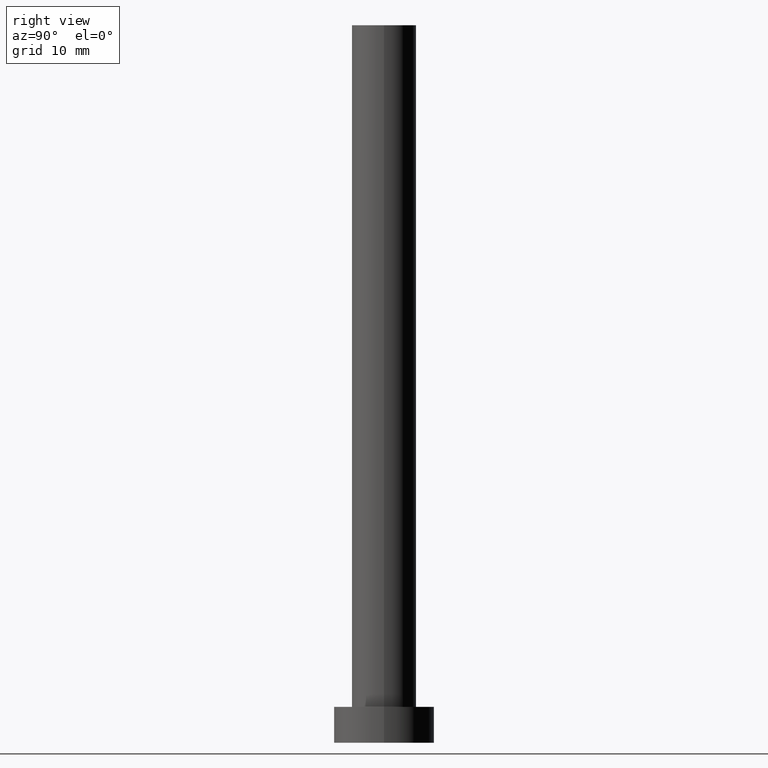
[diagram: clean part render]
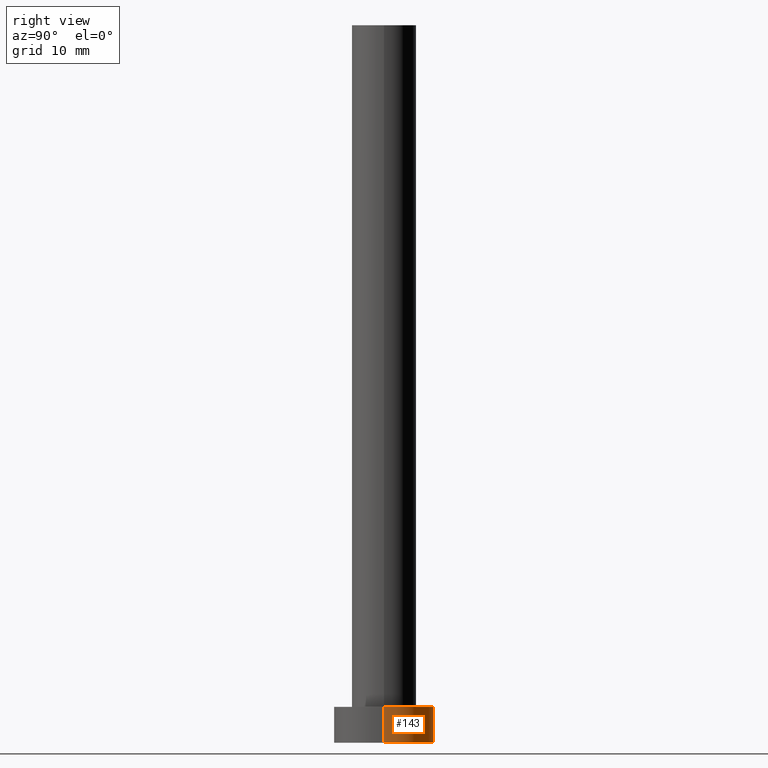
[diagram: same view with one face highlighted and labeled with its STEP entity id]
A machine part, right view. The second image highlights one B-rep face of the part: STEP entity #143.
In plain terms, the highlighted cylindrical surface (partial cylindrical patch) has radius 7 mm, axis along (-0, -0, -1).
Its self-contained STEP definition (entity closure, byte-faithful):
#3 = CARTESIAN_POINT ( 'NONE',  ( 7.000000000000000000, 8.572527594031473190E-16, 5.000000000000000000 ) ) ;
#5 = VECTOR ( 'NONE', #178, 1000.000000000000000 ) ;
#6 = LINE ( 'NONE', #46, #52 ) ;
#11 = VERTEX_POINT ( 'NONE', #22 ) ;
#22 = CARTESIAN_POINT ( 'NONE',  ( 7.000000000000000000, 8.572527594031473190E-16, 0.000000000000000000 ) ) ;
#32 = CARTESIAN_POINT ( 'NONE',  ( -7.000000000000000000, 0.000000000000000000, 5.000000000000000000 ) ) ;
#38 = DIRECTION ( 'NONE',  ( 1.000000000000000000, 0.000000000000000000, 0.000000000000000000 ) ) ;
#41 = ORIENTED_EDGE ( 'NONE', *, *, #43, .F. ) ;
#43 = EDGE_CURVE ( 'NONE', #238, #115, #231, .T. ) ;
#46 = CARTESIAN_POINT ( 'NONE',  ( 7.000000000000000000, 8.572527594031473190E-16, 5.000000000000000000 ) ) ;
#52 = VECTOR ( 'NONE', #89, 1000.000000000000000 ) ;
#60 = EDGE_CURVE ( 'NONE', #11, #115, #212, .T. ) ;
#68 = DIRECTION ( 'NONE',  ( -0.000000000000000000, -0.000000000000000000, -1.000000000000000000 ) ) ;
#88 = DIRECTION ( 'NONE',  ( -1.000000000000000000, 0.000000000000000000, 0.000000000000000000 ) ) ;
#89 = DIRECTION ( 'NONE',  ( -0.000000000000000000, -0.000000000000000000, -1.000000000000000000 ) ) ;
#92 = CYLINDRICAL_SURFACE ( 'NONE', #193, 7.000000000000000000 ) ;
#99 = CARTESIAN_POINT ( 'NONE',  ( -7.000000000000000000, 0.000000000000000000, 5.000000000000000000 ) ) ;
#105 = VERTEX_POINT ( 'NONE', #3 ) ;
#115 = VERTEX_POINT ( 'NONE', #146 ) ;
#121 = EDGE_CURVE ( 'NONE', #105, #11, #6, .T. ) ;
#127 = FACE_OUTER_BOUND ( 'NONE', #151, .T. ) ;
#133 = EDGE_CURVE ( 'NONE', #105, #238, #166, .T. ) ;
#135 = AXIS2_PLACEMENT_3D ( 'NONE', #183, #137, #38 ) ;
#137 = DIRECTION ( 'NONE',  ( 0.000000000000000000, 0.000000000000000000, 1.000000000000000000 ) ) ;
#142 = CARTESIAN_POINT ( 'NONE',  ( 0.000000000000000000, 0.000000000000000000, 5.000000000000000000 ) ) ;
#143 = ADVANCED_FACE ( 'NONE', ( #127 ), #92, .T. ) ;
#146 = CARTESIAN_POINT ( 'NONE',  ( -7.000000000000000000, 0.000000000000000000, 0.000000000000000000 ) ) ;
#151 = EDGE_LOOP ( 'NONE', ( #158, #249, #216, #41 ) ) ;
#158 = ORIENTED_EDGE ( 'NONE', *, *, #133, .F. ) ;
#166 = CIRCLE ( 'NONE', #226, 7.000000000000000000 ) ;
#178 = DIRECTION ( 'NONE',  ( -0.000000000000000000, -0.000000000000000000, -1.000000000000000000 ) ) ;
#183 = CARTESIAN_POINT ( 'NONE',  ( 0.000000000000000000, 0.000000000000000000, 0.000000000000000000 ) ) ;
#193 = AXIS2_PLACEMENT_3D ( 'NONE', #142, #68, #88 ) ;
#204 = DIRECTION ( 'NONE',  ( 0.000000000000000000, 0.000000000000000000, 1.000000000000000000 ) ) ;
#212 = CIRCLE ( 'NONE', #135, 7.000000000000000000 ) ;
#216 = ORIENTED_EDGE ( 'NONE', *, *, #60, .T. ) ;
#221 = CARTESIAN_POINT ( 'NONE',  ( 0.000000000000000000, 0.000000000000000000, 5.000000000000000000 ) ) ;
#226 = AXIS2_PLACEMENT_3D ( 'NONE', #221, #204, #240 ) ;
#231 = LINE ( 'NONE', #99, #5 ) ;
#238 = VERTEX_POINT ( 'NONE', #32 ) ;
#240 = DIRECTION ( 'NONE',  ( 1.000000000000000000, 0.000000000000000000, 0.000000000000000000 ) ) ;
#249 = ORIENTED_EDGE ( 'NONE', *, *, #121, .T. ) ;